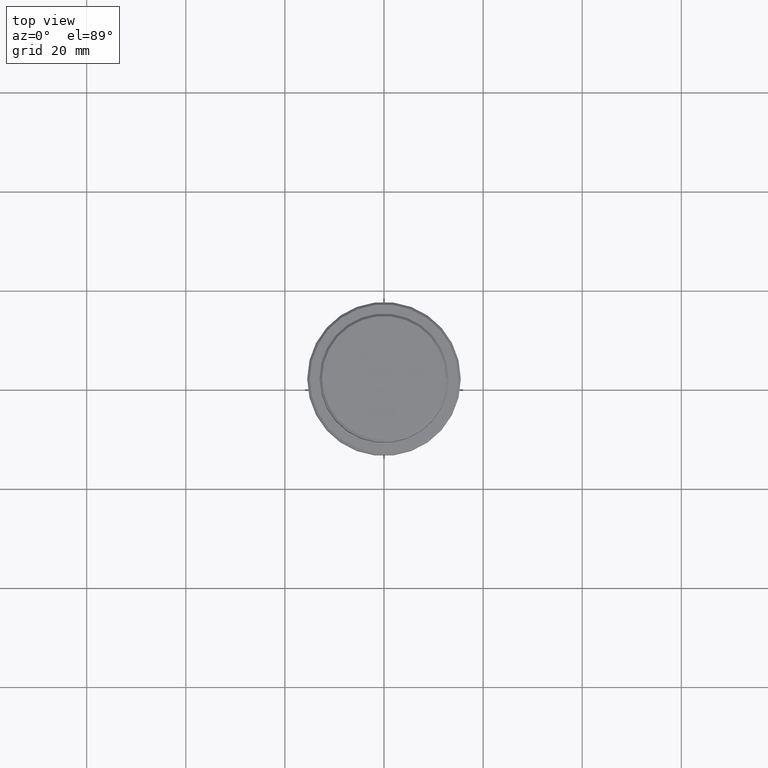
[diagram: clean part render]
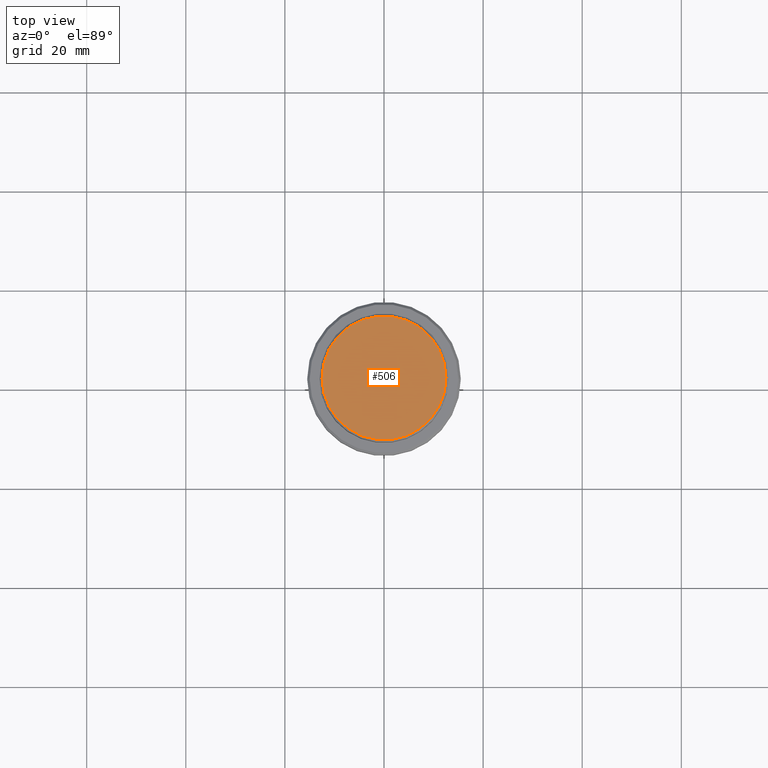
[diagram: same view with one face highlighted and labeled with its STEP entity id]
A machine part, top view. The second image highlights one B-rep face of the part: STEP entity #506.
In plain terms, the highlighted planar face has unit normal (0, -0, 1).
Its self-contained STEP definition (entity closure, byte-faithful):
#4 = ORIENTED_EDGE ( 'NONE', *, *, #1287, .T. ) ;
#9 = VERTEX_POINT ( 'NONE', #937 ) ;
#18 = AXIS2_PLACEMENT_3D ( 'NONE', #92, #592, #677 ) ;
#92 = CARTESIAN_POINT ( 'NONE',  ( 0.000000000000000000, 0.000000000000000000, 0.000000000000000000 ) ) ;
#184 = CIRCLE ( 'NONE', #374, 12.50000000000001243 ) ;
#201 = PLANE ( 'NONE',  #18 ) ;
#274 = DIRECTION ( 'NONE',  ( -0.000000000000000000, -0.000000000000000000, 1.000000000000000000 ) ) ;
#293 = DIRECTION ( 'NONE',  ( 1.000000000000000000, 0.000000000000000000, 0.000000000000000000 ) ) ;
#374 = AXIS2_PLACEMENT_3D ( 'NONE', #836, #274, #393 ) ;
#393 = DIRECTION ( 'NONE',  ( 1.000000000000000000, 0.000000000000000000, 0.000000000000000000 ) ) ;
#506 = ADVANCED_FACE ( 'NONE', ( #1179 ), #201, .T. ) ;
#514 = CARTESIAN_POINT ( 'NONE',  ( 0.000000000000000000, 0.000000000000000000, 0.000000000000000000 ) ) ;
#592 = DIRECTION ( 'NONE',  ( 0.000000000000000000, -0.000000000000000000, 1.000000000000000000 ) ) ;
#654 = CARTESIAN_POINT ( 'NONE',  ( -12.50000000000001243, 0.000000000000000000, 0.000000000000000000 ) ) ;
#677 = DIRECTION ( 'NONE',  ( 1.000000000000000000, 0.000000000000000000, 0.000000000000000000 ) ) ;
#731 = CIRCLE ( 'NONE', #1099, 12.50000000000001243 ) ;
#836 = CARTESIAN_POINT ( 'NONE',  ( 0.000000000000000000, 0.000000000000000000, 0.000000000000000000 ) ) ;
#937 = CARTESIAN_POINT ( 'NONE',  ( 12.50000000000001243, 1.561424668912876097E-15, 0.000000000000000000 ) ) ;
#1009 = EDGE_LOOP ( 'NONE', ( #4, #1350 ) ) ;
#1099 = AXIS2_PLACEMENT_3D ( 'NONE', #514, #1269, #293 ) ;
#1179 = FACE_OUTER_BOUND ( 'NONE', #1009, .T. ) ;
#1267 = EDGE_CURVE ( 'NONE', #9, #1397, #184, .T. ) ;
#1269 = DIRECTION ( 'NONE',  ( -0.000000000000000000, -0.000000000000000000, 1.000000000000000000 ) ) ;
#1287 = EDGE_CURVE ( 'NONE', #1397, #9, #731, .T. ) ;
#1350 = ORIENTED_EDGE ( 'NONE', *, *, #1267, .T. ) ;
#1397 = VERTEX_POINT ( 'NONE', #654 ) ;